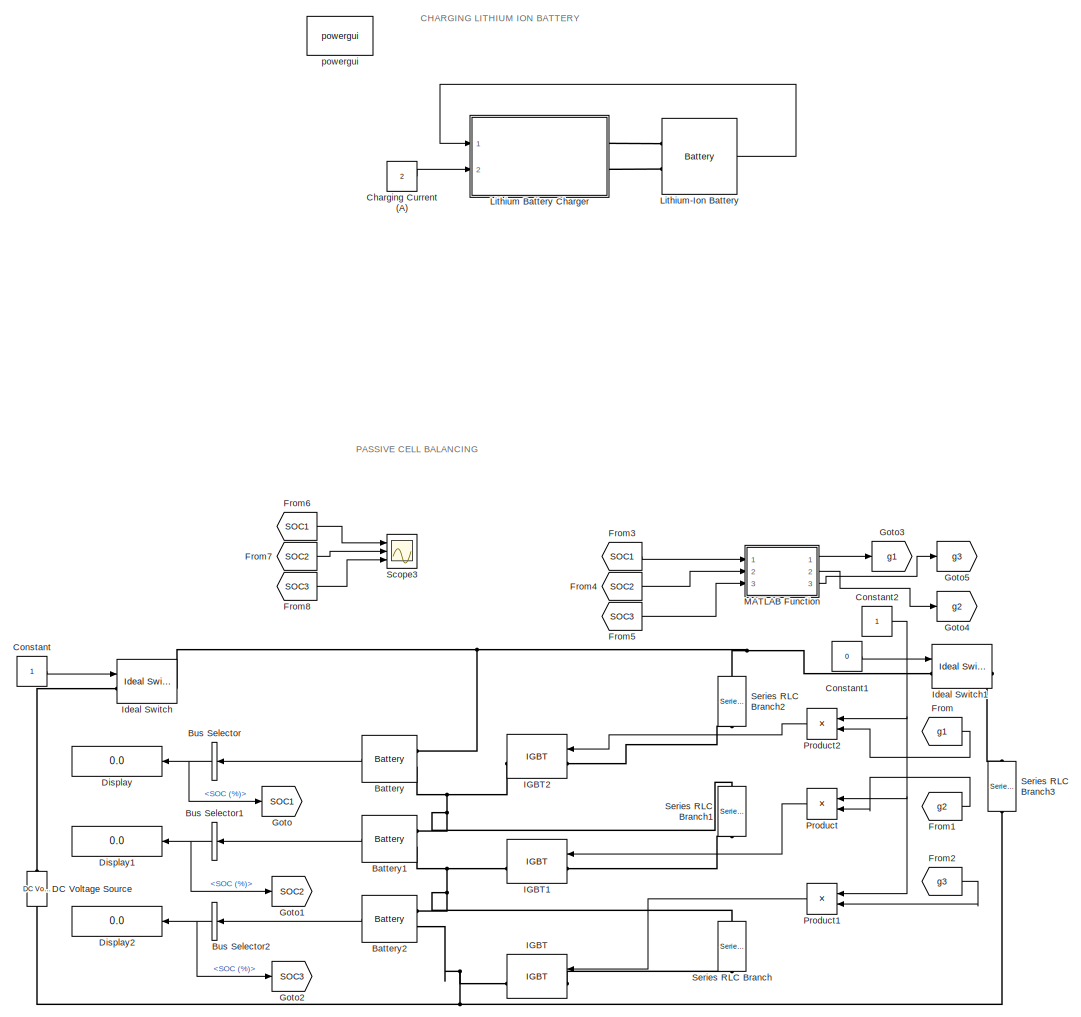
[diagram: root canvas - part 1/4, center side, full height]
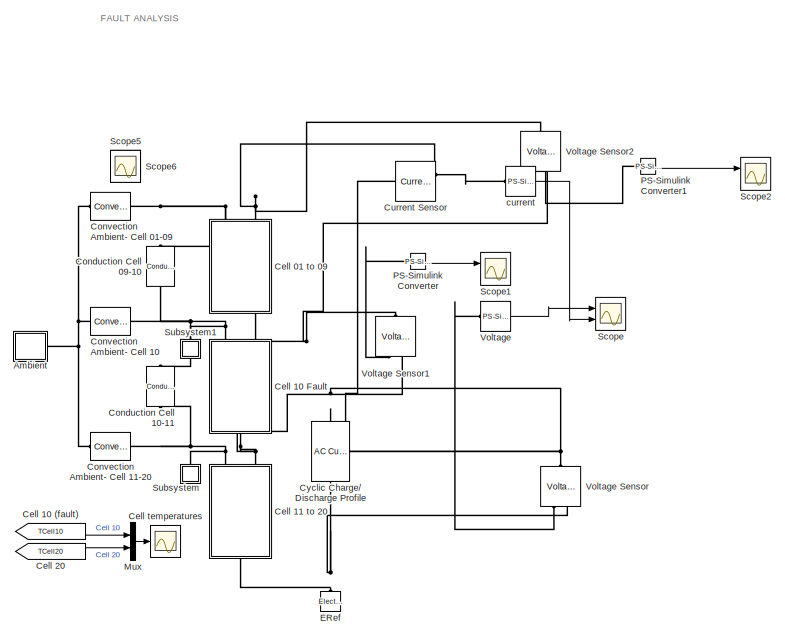
[diagram: root canvas - part 2/4, middle right region]
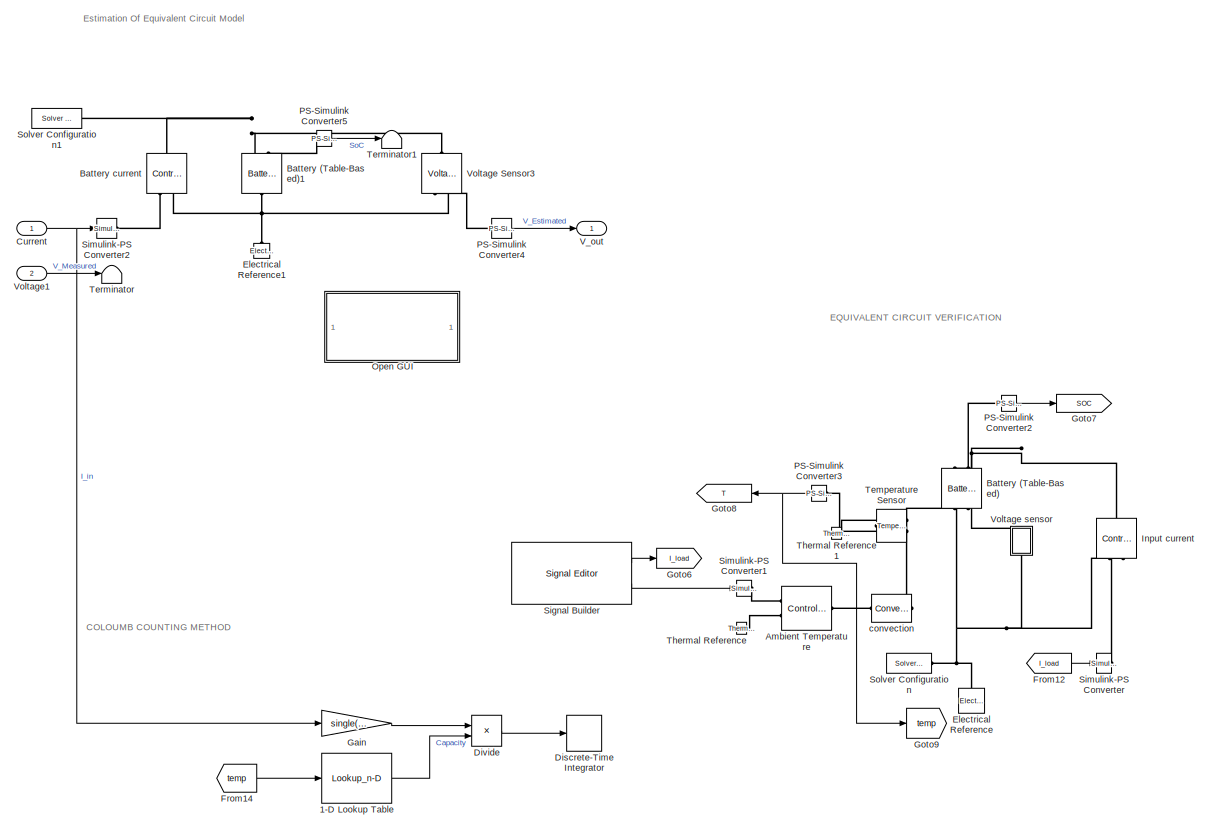
[diagram: root canvas - part 3/4, left side, full height]
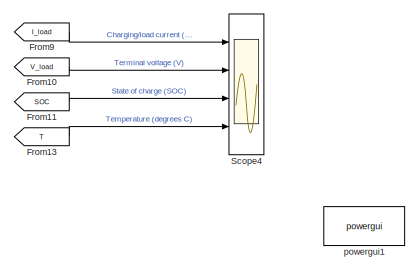
[diagram: root canvas - part 4/4, bottom center region]
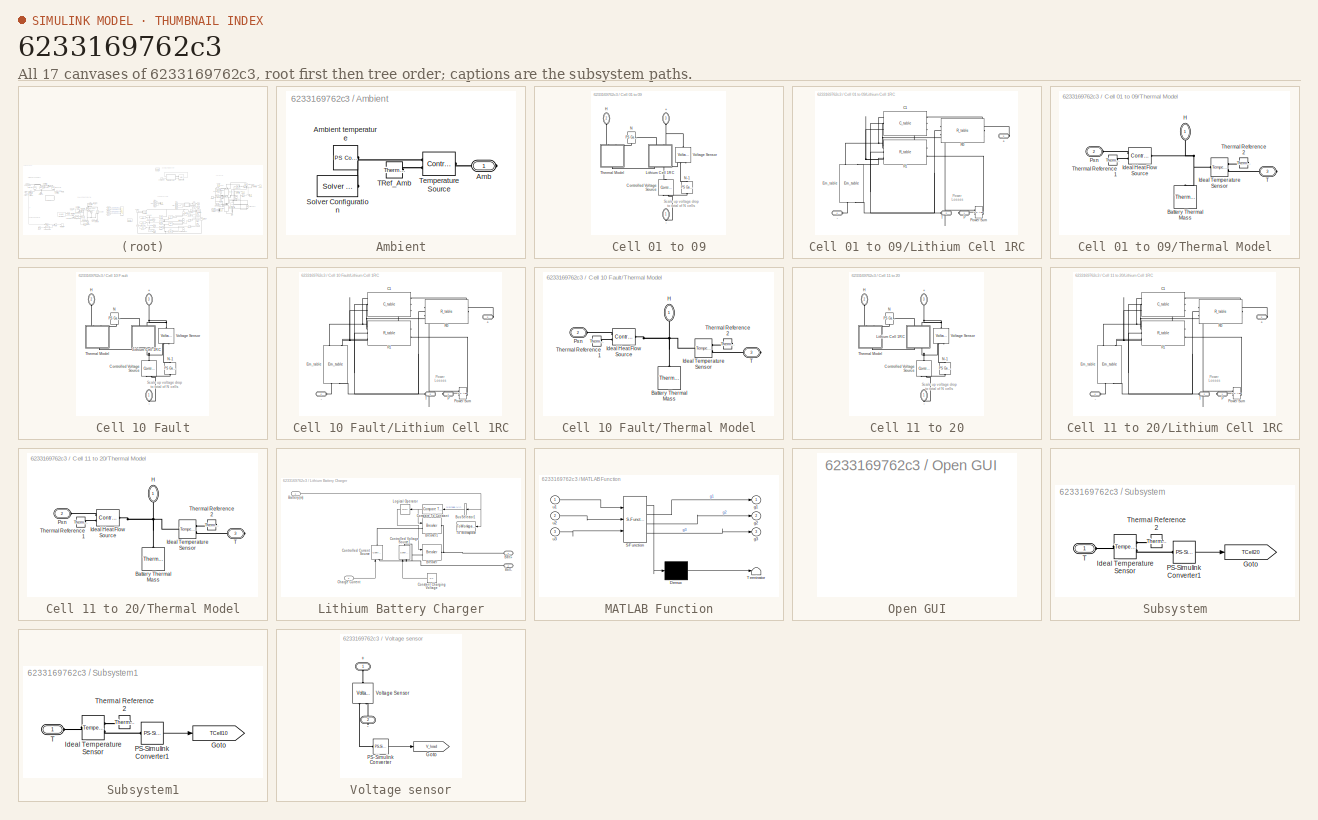
[diagram: thumbnail index - all 17 canvases of the model, root first then tree order]
MODEL slx_6233169762c3
KIND model
CONFIG AbsTol = auto
CONFIG EnableMultiTasking = on
CONFIG FixedStep = auto
CONFIG MaxStep = 10
CONFIG MinStep = auto
CONFIG PreLoadFcn = ssc_lithium_cell_1RC_ini
CONFIG RelTol = 1e-3
CONFIG SampleTimeConstraint = Unconstrained
CONFIG SolverName = VariableStepAuto
CONFIG StartTime = 0.0
CONFIG StopTime = 7200
BLOCK [Lookup_n-D] 1-D Lookup Table
  BreakpointsForDimension1 = single(Battery(1).Temperature_LUT)
  InputPortMap = u0
  InternalRulePriority = Speed
  NumberOfTableDimensions = 1
  Ports = [1, 1]
  RndMeth = Simplest
  Table = single(Battery(1).Capacity_LUT)
BLOCK [SubSystem] Ambient
  Ports = [0, 0, 0, 0, 0, 0, 1]
  RequestExecContextInheritance = off
BLOCK [Reference] Ambient Temperature  REF=fl_lib/Thermal/Thermal Sources/Controlled
Temperature Source
  Ports = [0, 0, 0, 0, 0, 1, 2]
  SourceBlock = fl_lib/Thermal/Thermal Sources/Controlled\nTemperature Source
  SourceProductBaseCode = SS
  SourceType = Controlled\nTemperature Source
BLOCK [PMIOPort] Ambient/Amb
  Side = Right
BLOCK [Reference] Ambient/Ambient temperature  REF=fl_lib/Physical Signals/Sources/PS Constant
  NameLocation = top
  Ports = [0, 0, 0, 0, 0, 0, 1]
  SourceBlock = fl_lib/Physical Signals/Sources/PS Constant
  SourceProductBaseCode = SS
  SourceType = PS Constant
BLOCK [Reference] Ambient/Solver Configuration  REF=nesl_utility/Solver
Configuration
  Ports = [0, 0, 0, 0, 0, 0, 1]
  SourceBlock = nesl_utility/Solver\nConfiguration
  SourceProductBaseCode = PW,SS
  SourceType = Solver\nConfiguration
BLOCK [Reference] Ambient/TRef_Amb  REF=fl_lib/Thermal/Thermal Elements/Thermal Reference
  Ports = [0, 0, 0, 0, 0, 1]
  SourceBlock = fl_lib/Thermal/Thermal Elements/Thermal Reference
  SourceProductBaseCode = SS
  SourceType = Thermal Reference
BLOCK [Reference] Ambient/Temperature Source  REF=fl_lib/Thermal/Thermal Sources/Controlled
Temperature Source
  Ports = [0, 0, 0, 0, 0, 1, 2]
  SourceBlock = fl_lib/Thermal/Thermal Sources/Controlled\nTemperature Source
  SourceProductBaseCode = SS
  SourceType = Controlled\nTemperature Source
BLOCK [Reference] Battery  REF=spsBatteryLib/Battery
  Ports = [0, 1, 0, 0, 0, 2]
  SourceBlock = spsBatteryLib/Battery
  SourceProductBaseCode = PS
  SourceType = Battery
BLOCK [Reference] Battery (Table-Based)  REF=ee_lib/Sources/Battery
(Table-Based)
  NameLocation = left
  Ports = [0, 0, 0, 0, 0, 2, 2]
  SourceBlock = ee_lib/Sources/Battery\n(Table-Based)
  SourceProductBaseCode = PS
  SourceType = Battery\n(Table-Based)
BLOCK [Reference] Battery (Table-Based)1  REF=ee_lib/Sources/Battery
(Table-Based)
  NameLocation = right
  Ports = [0, 0, 0, 0, 0, 2, 1]
  SourceBlock = ee_lib/Sources/Battery\n(Table-Based)
  SourceProductBaseCode = PS
  SourceType = Battery\n(Table-Based)
BLOCK [Reference] Battery current  REF=fl_lib/Electrical/Electrical Sources/Controlled Current
Source
  NameLocation = left
  Ports = [0, 0, 0, 0, 0, 1, 2]
  SourceBlock = fl_lib/Electrical/Electrical Sources/Controlled Current\nSource
  SourceProductBaseCode = SS
  SourceType = Controlled Current\nSource
BLOCK [Reference] Battery1  REF=spsBatteryLib/Battery
  Ports = [0, 1, 0, 0, 0, 2]
  SourceBlock = spsBatteryLib/Battery
  SourceProductBaseCode = PS
  SourceType = Battery
BLOCK [Reference] Battery2  REF=spsBatteryLib/Battery
  Ports = [0, 1, 0, 0, 0, 2]
  SourceBlock = spsBatteryLib/Battery
  SourceProductBaseCode = PS
  SourceType = Battery
BLOCK [BusSelector] Bus Selector
  NameLocation = top
  OutputSignals = SOC (%)
  Ports = [1, 1]
BLOCK [BusSelector] Bus Selector1
  NameLocation = top
  OutputSignals = SOC (%)
  Ports = [1, 1]
BLOCK [BusSelector] Bus Selector2
  NameLocation = top
  OutputSignals = SOC (%)
  Ports = [1, 1]
BLOCK [SubSystem] Cell 01 to 09
  NameLocation = right
  Ports = [0, 0, 0, 0, 0, 2, 1]
  RequestExecContextInheritance = off
  Tag = PublishSubsystem
BLOCK [PMIOPort] Cell 01 to 09/+
  NameLocation = left
  Port = 3
  Side = Left
  Tag = PMCPort
BLOCK [PMIOPort] Cell 01 to 09/-
  NameLocation = left
  Side = Right
  Tag = PMCPort
BLOCK [Reference] Cell 01 to 09/Controlled Voltage Source  REF=fl_lib/Electrical/Electrical Sources/Controlled Voltage
Source
  NameLocation = left
  Ports = [0, 0, 0, 0, 0, 1, 2]
  SourceBlock = fl_lib/Electrical/Electrical Sources/Controlled Voltage\nSource
  SourceProductBaseCode = SS
  SourceType = Controlled Voltage\nSource
BLOCK [PMIOPort] Cell 01 to 09/H
  NameLocation = left
  Port = 2
  Side = Left
  Tag = PMCPort
BLOCK [SubSystem] Cell 01 to 09/Lithium Cell 1RC
  NameLocation = left
  Ports = [0, 0, 0, 0, 0, 2, 2]
  RequestExecContextInheritance = off
  Tag = PublishSubsystem
BLOCK [PMIOPort] Cell 01 to 09/Lithium Cell 1RC/+
  Port = 3
  Side = Right
BLOCK [PMIOPort] Cell 01 to 09/Lithium Cell 1RC/-
  NameLocation = top
  Port = 4
  Side = Left
BLOCK [Reference] Cell 01 to 09/Lithium Cell 1RC/C1  REF=LiBatteryElements_lib/C_table
  NameLocation = top
  Ports = [0, 0, 0, 0, 0, 3, 1]
  SourceBlock = LiBatteryElements_lib/C_table
  SourceProductBaseCode = SS
  SourceType = C_table
BLOCK [Reference] Cell 01 to 09/Lithium Cell 1RC/Em_table  REF=LiBatteryElements_lib/Em_table
  NameLocation = right
  Ports = [0, 0, 0, 0, 0, 3, 2]
  SourceBlock = LiBatteryElements_lib/Em_table
  SourceProductBaseCode = SS
  SourceType = Em_table
BLOCK [PMIOPort] Cell 01 to 09/Lithium Cell 1RC/P
  Side = Right
BLOCK [Reference] Cell 01 to 09/Lithium Cell 1RC/Power Sum  REF=fl_ps_legacy_lib/Legacy Physical
Signals/Functions/PS Add
  NameLocation = top
  Ports = [0, 0, 0, 0, 0, 2, 1]
  SourceBlock = fl_ps_legacy_lib/Legacy Physical\nSignals/Functions/PS Add
  SourceProductBaseCode = SS
  SourceType = PS Add
BLOCK [Reference] Cell 01 to 09/Lithium Cell 1RC/R0  REF=LiBatteryElements_lib/R_table
  Ports = [0, 0, 0, 0, 0, 3, 2]
  SourceBlock = LiBatteryElements_lib/R_table
  SourceProductBaseCode = SS
  SourceType = R_table
BLOCK [Reference] Cell 01 to 09/Lithium Cell 1RC/R1  REF=LiBatteryElements_lib/R_table
  Ports = [0, 0, 0, 0, 0, 3, 2]
  SourceBlock = LiBatteryElements_lib/R_table
  SourceProductBaseCode = SS
  SourceType = R_table
BLOCK [PMIOPort] Cell 01 to 09/Lithium Cell 1RC/T
  Port = 2
  Side = Left
BLOCK [Reference] Cell 01 to 09/N  REF=fl_ps_legacy_lib/Legacy Physical
Signals/Functions/PS Gain
  NameLocation = top
  Ports = [0, 0, 0, 0, 0, 1, 1]
  SourceBlock = fl_ps_legacy_lib/Legacy Physical\nSignals/Functions/PS Gain
  SourceProductBaseCode = SS
  SourceType = PS Gain
BLOCK [Reference] Cell 01 to 09/N-1  REF=fl_ps_legacy_lib/Legacy Physical
Signals/Functions/PS Gain
  NameLocation = right
  Ports = [0, 0, 0, 0, 0, 1, 1]
  SourceBlock = fl_ps_legacy_lib/Legacy Physical\nSignals/Functions/PS Gain
  SourceProductBaseCode = SS
  SourceType = PS Gain
BLOCK [SubSystem] Cell 01 to 09/Thermal Model
  NameLocation = left
  Ports = [0, 0, 0, 0, 0, 2, 1]
  RequestExecContextInheritance = off
BLOCK [Reference] Cell 01 to 09/Thermal Model/Battery Thermal Mass  REF=fl_lib/Thermal/Thermal Elements/Thermal Mass
  NameLocation = right
  Ports = [0, 0, 0, 0, 0, 1]
  SourceBlock = fl_lib/Thermal/Thermal Elements/Thermal Mass
  SourceProductBaseCode = SS
  SourceType = Thermal Mass
BLOCK [PMIOPort] Cell 01 to 09/Thermal Model/H
  NameLocation = left
  Side = Left
  Tag = PMCPort
BLOCK [Reference] Cell 01 to 09/Thermal Model/Ideal Heat Flow Source  REF=fl_lib/Thermal/Thermal Sources/Controlled Heat Flow
Rate Source
  Ports = [0, 0, 0, 0, 0, 1, 2]
  SourceBlock = fl_lib/Thermal/Thermal Sources/Controlled Heat Flow\nRate Source
  SourceProductBaseCode = SS
  SourceType = Controlled Heat Flow\nRate Source
BLOCK [Reference] Cell 01 to 09/Thermal Model/Ideal Temperature Sensor  REF=fl_lib/Thermal/Thermal Sensors/Temperature Sensor
  Ports = [0, 0, 0, 0, 0, 1, 2]
  SourceBlock = fl_lib/Thermal/Thermal Sensors/Temperature Sensor
  SourceProductBaseCode = SS
  SourceType = Temperature Sensor
BLOCK [PMIOPort] Cell 01 to 09/Thermal Model/Pxn
  NameLocation = top
  Port = 2
  Side = Left
  Tag = PMCPort
BLOCK [PMIOPort] Cell 01 to 09/Thermal Model/T
  Port = 3
  Side = Right
  Tag = PMCPort
BLOCK [Reference] Cell 01 to 09/Thermal Model/Thermal Reference1  REF=fl_lib/Thermal/Thermal Elements/Thermal Reference
  Ports = [0, 0, 0, 0, 0, 1]
  SourceBlock = fl_lib/Thermal/Thermal Elements/Thermal Reference
  SourceProductBaseCode = SS
  SourceType = Thermal Reference
BLOCK [Reference] Cell 01 to 09/Thermal Model/Thermal Reference2  REF=fl_lib/Thermal/Thermal Elements/Thermal Reference
  NameLocation = top
  Ports = [0, 0, 0, 0, 0, 1]
  SourceBlock = fl_lib/Thermal/Thermal Elements/Thermal Reference
  SourceProductBaseCode = SS
  SourceType = Thermal Reference
BLOCK [Reference] Cell 01 to 09/Voltage Sensor  REF=fl_lib/Electrical/Electrical Sensors/Voltage Sensor
  NameLocation = right
  Ports = [0, 0, 0, 0, 0, 1, 2]
  SourceBlock = fl_lib/Electrical/Electrical Sensors/Voltage Sensor
  SourceProductBaseCode = SS
  SourceType = Voltage Sensor
BLOCK [From] Cell 10 (fault)
  GotoTag = TCell10
  NameLocation = top
  TagVisibility = global
BLOCK [SubSystem] Cell 10 Fault
  NameLocation = right
  Ports = [0, 0, 0, 0, 0, 2, 1]
  RequestExecContextInheritance = off
BLOCK [PMIOPort] Cell 10 Fault/+
  NameLocation = left
  Port = 3
  Side = Left
  Tag = PMCPort
BLOCK [PMIOPort] Cell 10 Fault/-
  NameLocation = left
  Side = Right
  Tag = PMCPort
BLOCK [Reference] Cell 10 Fault/Controlled Voltage Source  REF=fl_lib/Electrical/Electrical Sources/Controlled Voltage
Source
  NameLocation = left
  Ports = [0, 0, 0, 0, 0, 1, 2]
  SourceBlock = fl_lib/Electrical/Electrical Sources/Controlled Voltage\nSource
  SourceProductBaseCode = SS
  SourceType = Controlled Voltage\nSource
BLOCK [PMIOPort] Cell 10 Fault/H
  NameLocation = left
  Port = 2
  Side = Left
  Tag = PMCPort
BLOCK [SubSystem] Cell 10 Fault/Lithium Cell 1RC
  NameLocation = left
  Ports = [0, 0, 0, 0, 0, 2, 2]
  RequestExecContextInheritance = off
BLOCK [PMIOPort] Cell 10 Fault/Lithium Cell 1RC/+
  Port = 3
  Side = Right
BLOCK [PMIOPort] Cell 10 Fault/Lithium Cell 1RC/-
  NameLocation = top
  Port = 4
  Side = Left
BLOCK [Reference] Cell 10 Fault/Lithium Cell 1RC/C1  REF=LiBatteryElements_lib/C_table
  NameLocation = top
  Ports = [0, 0, 0, 0, 0, 3, 1]
  SourceBlock = LiBatteryElements_lib/C_table
  SourceProductBaseCode = SS
  SourceType = C_table
BLOCK [Reference] Cell 10 Fault/Lithium Cell 1RC/Em_table  REF=LiBatteryElements_lib/Em_table
  NameLocation = right
  Ports = [0, 0, 0, 0, 0, 3, 2]
  SourceBlock = LiBatteryElements_lib/Em_table
  SourceProductBaseCode = SS
  SourceType = Em_table
BLOCK [PMIOPort] Cell 10 Fault/Lithium Cell 1RC/P
  Side = Right
BLOCK [Reference] Cell 10 Fault/Lithium Cell 1RC/Power Sum  REF=fl_ps_legacy_lib/Legacy Physical
Signals/Functions/PS Add
  NameLocation = top
  Ports = [0, 0, 0, 0, 0, 2, 1]
  SourceBlock = fl_ps_legacy_lib/Legacy Physical\nSignals/Functions/PS Add
  SourceProductBaseCode = SS
  SourceType = PS Add
BLOCK [Reference] Cell 10 Fault/Lithium Cell 1RC/R0  REF=LiBatteryElements_lib/R_table
  Ports = [0, 0, 0, 0, 0, 3, 2]
  SourceBlock = LiBatteryElements_lib/R_table
  SourceProductBaseCode = SS
  SourceType = R_table
BLOCK [Reference] Cell 10 Fault/Lithium Cell 1RC/R1  REF=LiBatteryElements_lib/R_table
  Ports = [0, 0, 0, 0, 0, 3, 2]
  SourceBlock = LiBatteryElements_lib/R_table
  SourceProductBaseCode = SS
  SourceType = R_table
BLOCK [PMIOPort] Cell 10 Fault/Lithium Cell 1RC/T
  Port = 2
  Side = Left
BLOCK [Reference] Cell 10 Fault/N  REF=fl_ps_legacy_lib/Legacy Physical
Signals/Functions/PS Gain
  NameLocation = top
  Ports = [0, 0, 0, 0, 0, 1, 1]
  SourceBlock = fl_ps_legacy_lib/Legacy Physical\nSignals/Functions/PS Gain
  SourceProductBaseCode = SS
  SourceType = PS Gain
BLOCK [Reference] Cell 10 Fault/N-1  REF=fl_ps_legacy_lib/Legacy Physical
Signals/Functions/PS Gain
  NameLocation = right
  Ports = [0, 0, 0, 0, 0, 1, 1]
  SourceBlock = fl_ps_legacy_lib/Legacy Physical\nSignals/Functions/PS Gain
  SourceProductBaseCode = SS
  SourceType = PS Gain
BLOCK [SubSystem] Cell 10 Fault/Thermal Model
  NameLocation = left
  Ports = [0, 0, 0, 0, 0, 2, 1]
  RequestExecContextInheritance = off
BLOCK [Reference] Cell 10 Fault/Thermal Model/Battery Thermal Mass  REF=fl_lib/Thermal/Thermal Elements/Thermal Mass
  NameLocation = right
  Ports = [0, 0, 0, 0, 0, 1]
  SourceBlock = fl_lib/Thermal/Thermal Elements/Thermal Mass
  SourceProductBaseCode = SS
  SourceType = Thermal Mass
BLOCK [PMIOPort] Cell 10 Fault/Thermal Model/H
  NameLocation = left
  Side = Left
  Tag = PMCPort
BLOCK [Reference] Cell 10 Fault/Thermal Model/Ideal Heat Flow Source  REF=fl_lib/Thermal/Thermal Sources/Controlled Heat Flow
Rate Source
  Ports = [0, 0, 0, 0, 0, 1, 2]
  SourceBlock = fl_lib/Thermal/Thermal Sources/Controlled Heat Flow\nRate Source
  SourceProductBaseCode = SS
  SourceType = Controlled Heat Flow\nRate Source
BLOCK [Reference] Cell 10 Fault/Thermal Model/Ideal Temperature Sensor  REF=fl_lib/Thermal/Thermal Sensors/Temperature Sensor
  Ports = [0, 0, 0, 0, 0, 1, 2]
  SourceBlock = fl_lib/Thermal/Thermal Sensors/Temperature Sensor
  SourceProductBaseCode = SS
  SourceType = Temperature Sensor
BLOCK [PMIOPort] Cell 10 Fault/Thermal Model/Pxn
  NameLocation = top
  Port = 2
  Side = Left
  Tag = PMCPort
BLOCK [PMIOPort] Cell 10 Fault/Thermal Model/T
  Port = 3
  Side = Right
  Tag = PMCPort
BLOCK [Reference] Cell 10 Fault/Thermal Model/Thermal Reference1  REF=fl_lib/Thermal/Thermal Elements/Thermal Reference
  Ports = [0, 0, 0, 0, 0, 1]
  SourceBlock = fl_lib/Thermal/Thermal Elements/Thermal Reference
  SourceProductBaseCode = SS
  SourceType = Thermal Reference
BLOCK [Reference] Cell 10 Fault/Thermal Model/Thermal Reference2  REF=fl_lib/Thermal/Thermal Elements/Thermal Reference
  NameLocation = top
  Ports = [0, 0, 0, 0, 0, 1]
  SourceBlock = fl_lib/Thermal/Thermal Elements/Thermal Reference
  SourceProductBaseCode = SS
  SourceType = Thermal Reference
BLOCK [Reference] Cell 10 Fault/Voltage Sensor  REF=fl_lib/Electrical/Electrical Sensors/Voltage Sensor
  NameLocation = right
  Ports = [0, 0, 0, 0, 0, 1, 2]
  SourceBlock = fl_lib/Electrical/Electrical Sensors/Voltage Sensor
  SourceProductBaseCode = SS
  SourceType = Voltage Sensor
BLOCK [SubSystem] Cell 11 to 20
  NameLocation = right
  Ports = [0, 0, 0, 0, 0, 2, 1]
  RequestExecContextInheritance = off
BLOCK [PMIOPort] Cell 11 to 20/+
  NameLocation = left
  Port = 3
  Side = Left
  Tag = PMCPort
BLOCK [PMIOPort] Cell 11 to 20/-
  NameLocation = left
  Side = Right
  Tag = PMCPort
BLOCK [Reference] Cell 11 to 20/Controlled Voltage Source  REF=fl_lib/Electrical/Electrical Sources/Controlled Voltage
Source
  NameLocation = left
  Ports = [0, 0, 0, 0, 0, 1, 2]
  SourceBlock = fl_lib/Electrical/Electrical Sources/Controlled Voltage\nSource
  SourceProductBaseCode = SS
  SourceType = Controlled Voltage\nSource
BLOCK [PMIOPort] Cell 11 to 20/H
  NameLocation = left
  Port = 2
  Side = Left
  Tag = PMCPort
BLOCK [SubSystem] Cell 11 to 20/Lithium Cell 1RC
  NameLocation = left
  Ports = [0, 0, 0, 0, 0, 2, 2]
  RequestExecContextInheritance = off
BLOCK [PMIOPort] Cell 11 to 20/Lithium Cell 1RC/+
  Port = 3
  Side = Right
BLOCK [PMIOPort] Cell 11 to 20/Lithium Cell 1RC/-
  NameLocation = top
  Port = 4
  Side = Left
BLOCK [Reference] Cell 11 to 20/Lithium Cell 1RC/C1  REF=LiBatteryElements_lib/C_table
  NameLocation = top
  Ports = [0, 0, 0, 0, 0, 3, 1]
  SourceBlock = LiBatteryElements_lib/C_table
  SourceProductBaseCode = SS
  SourceType = C_table
BLOCK [Reference] Cell 11 to 20/Lithium Cell 1RC/Em_table  REF=LiBatteryElements_lib/Em_table
  NameLocation = right
  Ports = [0, 0, 0, 0, 0, 3, 2]
  SourceBlock = LiBatteryElements_lib/Em_table
  SourceProductBaseCode = SS
  SourceType = Em_table
BLOCK [PMIOPort] Cell 11 to 20/Lithium Cell 1RC/P
  Side = Right
BLOCK [Reference] Cell 11 to 20/Lithium Cell 1RC/Power Sum  REF=fl_ps_legacy_lib/Legacy Physical
Signals/Functions/PS Add
  NameLocation = top
  Ports = [0, 0, 0, 0, 0, 2, 1]
  SourceBlock = fl_ps_legacy_lib/Legacy Physical\nSignals/Functions/PS Add
  SourceProductBaseCode = SS
  SourceType = PS Add
BLOCK [Reference] Cell 11 to 20/Lithium Cell 1RC/R0  REF=LiBatteryElements_lib/R_table
  Ports = [0, 0, 0, 0, 0, 3, 2]
  SourceBlock = LiBatteryElements_lib/R_table
  SourceProductBaseCode = SS
  SourceType = R_table
BLOCK [Reference] Cell 11 to 20/Lithium Cell 1RC/R1  REF=LiBatteryElements_lib/R_table
  Ports = [0, 0, 0, 0, 0, 3, 2]
  SourceBlock = LiBatteryElements_lib/R_table
  SourceProductBaseCode = SS
  SourceType = R_table
BLOCK [PMIOPort] Cell 11 to 20/Lithium Cell 1RC/T
  Port = 2
  Side = Left
BLOCK [Reference] Cell 11 to 20/N  REF=fl_ps_legacy_lib/Legacy Physical
Signals/Functions/PS Gain
  NameLocation = top
  Ports = [0, 0, 0, 0, 0, 1, 1]
  SourceBlock = fl_ps_legacy_lib/Legacy Physical\nSignals/Functions/PS Gain
  SourceProductBaseCode = SS
  SourceType = PS Gain
BLOCK [Reference] Cell 11 to 20/N-1  REF=fl_ps_legacy_lib/Legacy Physical
Signals/Functions/PS Gain
  NameLocation = right
  Ports = [0, 0, 0, 0, 0, 1, 1]
  SourceBlock = fl_ps_legacy_lib/Legacy Physical\nSignals/Functions/PS Gain
  SourceProductBaseCode = SS
  SourceType = PS Gain
BLOCK [SubSystem] Cell 11 to 20/Thermal Model
  NameLocation = left
  Ports = [0, 0, 0, 0, 0, 2, 1]
  RequestExecContextInheritance = off
BLOCK [Reference] Cell 11 to 20/Thermal Model/Battery Thermal Mass  REF=fl_lib/Thermal/Thermal Elements/Thermal Mass
  NameLocation = right
  Ports = [0, 0, 0, 0, 0, 1]
  SourceBlock = fl_lib/Thermal/Thermal Elements/Thermal Mass
  SourceProductBaseCode = SS
  SourceType = Thermal Mass
BLOCK [PMIOPort] Cell 11 to 20/Thermal Model/H
  NameLocation = left
  Side = Left
  Tag = PMCPort
BLOCK [Reference] Cell 11 to 20/Thermal Model/Ideal Heat Flow Source  REF=fl_lib/Thermal/Thermal Sources/Controlled Heat Flow
Rate Source
  Ports = [0, 0, 0, 0, 0, 1, 2]
  SourceBlock = fl_lib/Thermal/Thermal Sources/Controlled Heat Flow\nRate Source
  SourceProductBaseCode = SS
  SourceType = Controlled Heat Flow\nRate Source
BLOCK [Reference] Cell 11 to 20/Thermal Model/Ideal Temperature Sensor  REF=fl_lib/Thermal/Thermal Sensors/Temperature Sensor
  Ports = [0, 0, 0, 0, 0, 1, 2]
  SourceBlock = fl_lib/Thermal/Thermal Sensors/Temperature Sensor
  SourceProductBaseCode = SS
  SourceType = Temperature Sensor
BLOCK [PMIOPort] Cell 11 to 20/Thermal Model/Pxn
  NameLocation = top
  Port = 2
  Side = Left
  Tag = PMCPort
BLOCK [PMIOPort] Cell 11 to 20/Thermal Model/T
  Port = 3
  Side = Right
  Tag = PMCPort
BLOCK [Reference] Cell 11 to 20/Thermal Model/Thermal Reference1  REF=fl_lib/Thermal/Thermal Elements/Thermal Reference
  Ports = [0, 0, 0, 0, 0, 1]
  SourceBlock = fl_lib/Thermal/Thermal Elements/Thermal Reference
  SourceProductBaseCode = SS
  SourceType = Thermal Reference
BLOCK [Reference] Cell 11 to 20/Thermal Model/Thermal Reference2  REF=fl_lib/Thermal/Thermal Elements/Thermal Reference
  NameLocation = top
  Ports = [0, 0, 0, 0, 0, 1]
  SourceBlock = fl_lib/Thermal/Thermal Elements/Thermal Reference
  SourceProductBaseCode = SS
  SourceType = Thermal Reference
BLOCK [Reference] Cell 11 to 20/Voltage Sensor  REF=fl_lib/Electrical/Electrical Sensors/Voltage Sensor
  NameLocation = right
  Ports = [0, 0, 0, 0, 0, 1, 2]
  SourceBlock = fl_lib/Electrical/Electrical Sensors/Voltage Sensor
  SourceProductBaseCode = SS
  SourceType = Voltage Sensor
BLOCK [From] Cell 20
  GotoTag = TCell20
  TagVisibility = global
BLOCK [Scope] Cell temperatures
  Floating = off
  NumInputPorts = 1
  Ports = [1]
  ScopeSpecificationString = Simulink.scopes.TimeScopeBlockCfg('CurrentConfiguration', extmgr.ConfigurationSet(extmgr.Configuration('Core','General UI',true,'FigureColor',[0.501960784313725 0.501960784313725 0.501960784313725]),extmgr.Configuration('Core','Source UI',true),extmgr.Configuration('Sources','WiredSimulink',true,'DataLoggingSaveFormat','Array','DataLoggingLimitDataPoints',true,'DataLoggingDecimation','1','DataLogg...<+2912ch>
BLOCK [Constant] Charging Current (A)
  Value = 2
BLOCK [Reference] Conduction Cell 09-10  REF=fl_lib/Thermal/Thermal Elements/Conductive Heat
Transfer
  NameLocation = left
  Ports = [0, 0, 0, 0, 0, 1, 1]
  SourceBlock = fl_lib/Thermal/Thermal Elements/Conductive Heat\nTransfer
  SourceProductBaseCode = SS
  SourceType = Conductive Heat\nTransfer
BLOCK [Reference] Conduction Cell 10-11   REF=fl_lib/Thermal/Thermal Elements/Conductive Heat
Transfer
  NameLocation = left
  Ports = [0, 0, 0, 0, 0, 1, 1]
  SourceBlock = fl_lib/Thermal/Thermal Elements/Conductive Heat\nTransfer
  SourceProductBaseCode = SS
  SourceType = Conductive Heat\nTransfer
BLOCK [Constant] Constant
BLOCK [Constant] Constant1
  Value = 0
BLOCK [Constant] Constant2
BLOCK [Reference] Convection Ambient- Cell 01-09  REF=fl_lib/Thermal/Thermal Elements/Convective Heat
Transfer
  NameLocation = top
  Ports = [0, 0, 0, 0, 0, 1, 1]
  SourceBlock = fl_lib/Thermal/Thermal Elements/Convective Heat\nTransfer
  SourceProductBaseCode = SS
  SourceType = Convective Heat\nTransfer
BLOCK [Reference] Convection Ambient- Cell 10  REF=fl_lib/Thermal/Thermal Elements/Convective Heat
Transfer
  Ports = [0, 0, 0, 0, 0, 1, 1]
  SourceBlock = fl_lib/Thermal/Thermal Elements/Convective Heat\nTransfer
  SourceProductBaseCode = SS
  SourceType = Convective Heat\nTransfer
BLOCK [Reference] Convection Ambient- Cell 11-20  REF=fl_lib/Thermal/Thermal Elements/Convective Heat
Transfer
  Ports = [0, 0, 0, 0, 0, 1, 1]
  SourceBlock = fl_lib/Thermal/Thermal Elements/Convective Heat\nTransfer
  SourceProductBaseCode = SS
  SourceType = Convective Heat\nTransfer
BLOCK [Inport] Current
BLOCK [Reference] Current Sensor  REF=fl_lib/Electrical/Electrical Sensors/Current Sensor
  Ports = [0, 0, 0, 0, 0, 1, 2]
  SourceBlock = fl_lib/Electrical/Electrical Sensors/Current Sensor
  SourceProductBaseCode = SS
  SourceType = Current Sensor
BLOCK [Reference] Cyclic Charge// Discharge Profile  REF=fl_lib/Electrical/Electrical Sources/AC Current Source
  NameLocation = right
  Ports = [0, 0, 0, 0, 0, 1, 1]
  SourceBlock = fl_lib/Electrical/Electrical Sources/AC Current Source
  SourceProductBaseCode = SS
  SourceType = AC Current Source
BLOCK [Reference] DC Voltage Source  REF=spsDCVoltageSourceLib/DC Voltage Source
  Ports = [0, 0, 0, 0, 0, 1, 1]
  SourceBlock = spsDCVoltageSourceLib/DC Voltage Source
  SourceProductBaseCode = PS
  SourceType = DC Voltage Source
BLOCK [DiscreteIntegrator] Discrete-Time Integrator
  ICPrevOutput = DiscIntNeverNeededParam
  ICPrevScaledInput = DiscIntNeverNeededParam
  InitialCondition = single(0+0.05)
  InitialConditionSetting = Auto
  LimitOutput = on
  LowerSaturationLimit = 0
  Ports = [1, 1]
  SampleTime = -1
  UpperSaturationLimit = 1
BLOCK [Display] Display
  Decimation = 1
  NameLocation = top
  Ports = [1]
BLOCK [Display] Display1
  Decimation = 1
  NameLocation = top
  Ports = [1]
BLOCK [Display] Display2
  Decimation = 1
  NameLocation = top
  Ports = [1]
BLOCK [Product] Divide
  Inputs = */
  NameLocation = top
  Ports = [2, 1]
BLOCK [Reference] ERef   REF=fl_lib/Electrical/Electrical Elements/Electrical Reference
  NameLocation = left
  Ports = [0, 0, 0, 0, 0, 1]
  SourceBlock = fl_lib/Electrical/Electrical Elements/Electrical Reference
  SourceProductBaseCode = SS
  SourceType = Electrical Reference
BLOCK [Reference] Electrical Reference  REF=fl_lib/Electrical/Electrical Elements/Electrical Reference
  NameLocation = right
  Ports = [0, 0, 0, 0, 0, 1]
  SourceBlock = fl_lib/Electrical/Electrical Elements/Electrical Reference
  SourceProductBaseCode = SS
  SourceType = Electrical Reference
BLOCK [Reference] Electrical Reference1  REF=fl_lib/Electrical/Electrical Elements/Electrical Reference
  NameLocation = right
  Ports = [0, 0, 0, 0, 0, 1]
  SourceBlock = fl_lib/Electrical/Electrical Elements/Electrical Reference
  SourceProductBaseCode = SS
  SourceType = Electrical Reference
BLOCK [From] From
  GotoTag = g1
BLOCK [From] From1
  GotoTag = g2
BLOCK [From] From10
  GotoTag = V_load
  TagVisibility = global
BLOCK [From] From11
  GotoTag = SOC
BLOCK [From] From12
  GotoTag = I_load
  TagVisibility = global
BLOCK [From] From13
  GotoTag = T
BLOCK [From] From14
  GotoTag = temp
  TagVisibility = global
BLOCK [From] From2
  GotoTag = g3
BLOCK [From] From3
  GotoTag = SOC1
BLOCK [From] From4
  GotoTag = SOC2
BLOCK [From] From5
  GotoTag = SOC3
BLOCK [From] From6
  GotoTag = SOC1
BLOCK [From] From7
  GotoTag = SOC2
BLOCK [From] From8
  GotoTag = SOC3
BLOCK [From] From9
  GotoTag = I_load
  TagVisibility = global
BLOCK [Gain] Gain
  Gain = single(1/3600)
BLOCK [Goto] Goto
  GotoTag = SOC1
BLOCK [Goto] Goto1
  GotoTag = SOC2
BLOCK [Goto] Goto2
  GotoTag = SOC3
BLOCK [Goto] Goto3
  GotoTag = g1
BLOCK [Goto] Goto4
  GotoTag = g2
BLOCK [Goto] Goto5
  GotoTag = g3
BLOCK [Goto] Goto6
  GotoTag = I_load
  NameLocation = top
  TagVisibility = global
BLOCK [Goto] Goto7
  GotoTag = SOC
  NameLocation = top
BLOCK [Goto] Goto8
  GotoTag = T
  NameLocation = top
BLOCK [Goto] Goto9
  GotoTag = temp
  TagVisibility = global
BLOCK [Reference] IGBT  REF=spsIGBTLib/IGBT
  Ports = [1, 1, 0, 0, 0, 1, 1]
  SourceBlock = spsIGBTLib/IGBT
  SourceProductBaseCode = PS
  SourceType = IGBT
BLOCK [Reference] IGBT1  REF=spsIGBTLib/IGBT
  Ports = [1, 1, 0, 0, 0, 1, 1]
  SourceBlock = spsIGBTLib/IGBT
  SourceProductBaseCode = PS
  SourceType = IGBT
BLOCK [Reference] IGBT2  REF=spsIGBTLib/IGBT
  Ports = [1, 1, 0, 0, 0, 1, 1]
  SourceBlock = spsIGBTLib/IGBT
  SourceProductBaseCode = PS
  SourceType = IGBT
BLOCK [Reference] Ideal Switch  REF=spsIdealSwitchLib/Ideal Switch
  Ports = [1, 1, 0, 0, 0, 1, 1]
  SourceBlock = spsIdealSwitchLib/Ideal Switch
  SourceProductBaseCode = PS
  SourceType = Ideal Switch
BLOCK [Reference] Ideal Switch1  REF=spsIdealSwitchLib/Ideal Switch
  Ports = [1, 1, 0, 0, 0, 1, 1]
  SourceBlock = spsIdealSwitchLib/Ideal Switch
  SourceProductBaseCode = PS
  SourceType = Ideal Switch
BLOCK [Reference] Input current  REF=fl_lib/Electrical/Electrical Sources/Controlled Current
Source
  NameLocation = right
  Ports = [0, 0, 0, 0, 0, 1, 2]
  SourceBlock = fl_lib/Electrical/Electrical Sources/Controlled Current\nSource
  SourceProductBaseCode = SS
  SourceType = Controlled Current\nSource
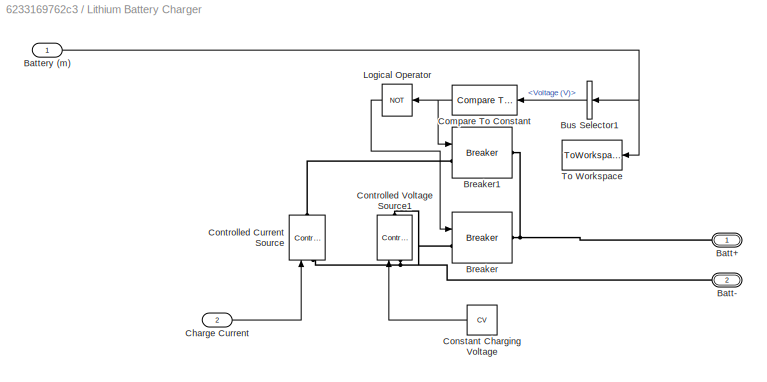
BLOCK [SubSystem] Lithium Battery Charger
  Ports = [2, 0, 0, 0, 0, 0, 2]
  RequestExecContextInheritance = off
BLOCK [PMIOPort] Lithium Battery Charger/Batt+
  Side = Right
BLOCK [PMIOPort] Lithium Battery Charger/Batt-
  Port = 2
  Side = Right
BLOCK [Inport] Lithium Battery Charger/Battery (m)
BLOCK [Reference] Lithium Battery Charger/Breaker  REF=spsBreakerLib/Breaker
  Ports = [1, 0, 0, 0, 0, 1, 1]
  SourceBlock = spsBreakerLib/Breaker
  SourceProductBaseCode = PS
  SourceType = Breaker
BLOCK [Reference] Lithium Battery Charger/Breaker1  REF=spsBreakerLib/Breaker
  Ports = [1, 0, 0, 0, 0, 1, 1]
  SourceBlock = spsBreakerLib/Breaker
  SourceProductBaseCode = PS
  SourceType = Breaker
BLOCK [BusSelector] Lithium Battery Charger/Bus Selector1
  OutputSignals = Voltage (V)
  Ports = [1, 1]
BLOCK [Inport] Lithium Battery Charger/Charge Current
  Port = 2
BLOCK [Reference] Lithium Battery Charger/Compare To Constant  REF=simulink/Logic and Bit
Operations/Compare
To Constant
  NameLocation = top
  Ports = [1, 1]
  SourceBlock = simulink/Logic and Bit\nOperations/Compare\nTo Constant
  SourceProductBaseCode = SL
  SourceType = Compare To Constant
BLOCK [Constant] Lithium Battery Charger/Constant Charging Voltage
  Value = CV
BLOCK [Reference] Lithium Battery Charger/Controlled Current Source  REF=spsControlledCurrentSourceLib/Controlled Current Source
  NameLocation = right
  Ports = [1, 0, 0, 0, 0, 1, 1]
  SourceBlock = spsControlledCurrentSourceLib/Controlled Current Source
  SourceProductBaseCode = PS
  SourceType = Controlled Current Source
BLOCK [Reference] Lithium Battery Charger/Controlled Voltage Source1  REF=spsControlledVoltageSourceLib/Controlled Voltage Source
  NameLocation = right
  Ports = [1, 0, 0, 0, 0, 1, 1]
  SourceBlock = spsControlledVoltageSourceLib/Controlled Voltage Source
  SourceProductBaseCode = PS
  SourceType = Controlled Voltage Source
BLOCK [Logic] Lithium Battery Charger/Logical Operator
  AllPortsSameDT = off
  Operator = NOT
  OutDataTypeStr = boolean
  Ports = [1, 1]
BLOCK [ToWorkspace] Lithium Battery Charger/To Workspace
  FixptAsFi = on
  MaxDataPoints = inf
  Ports = [1]
  SampleTime = -1
  VariableName = simout
BLOCK [Reference] Lithium-Ion Battery  REF=spsBatteryLib/Battery
  Ports = [0, 1, 0, 0, 0, 2]
  SourceBlock = spsBatteryLib/Battery
  SourceProductBaseCode = PS
  SourceType = Battery
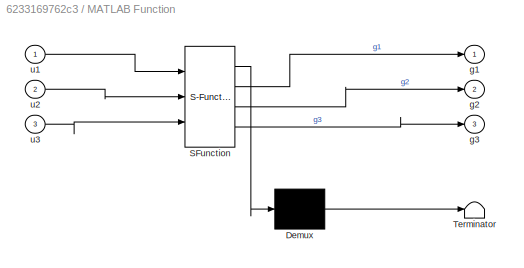
BLOCK [SubSystem] MATLAB Function
  ErrorFcn = Stateflow.Translate.translate
  PermitHierarchicalResolution = ExplicitOnly
  Ports = [3, 3]
  RequestExecContextInheritance = off
  SFBlockType = MATLAB Function
  TreatAsAtomicUnit = on
BLOCK [Demux] MATLAB Function/ Demux 
  Outputs = 1
  Ports = [1, 1]
BLOCK [S-Function] MATLAB Function/ SFunction 
  EnableBusSupport = on
  FunctionName = sf_sfun
  PortCounts = [3 4]
  Ports = [3, 4]
  SFcnIsStateOwnerBlock = off
  SFunctionDeploymentMode = off
  Tag = Stateflow S-Function 2
BLOCK [Terminator] MATLAB Function/ Terminator 
BLOCK [Outport] MATLAB Function/g1
  VectorParamsAs1DForOutWhenUnconnected = off
BLOCK [Outport] MATLAB Function/g2
  Port = 2
BLOCK [Outport] MATLAB Function/g3
  Port = 3
BLOCK [Inport] MATLAB Function/u1
BLOCK [Inport] MATLAB Function/u2
  Port = 2
BLOCK [Inport] MATLAB Function/u3
  Port = 3
BLOCK [Mux] Mux
  DisplayOption = bar
  Inputs = 2
  Ports = [2, 1]
BLOCK [SubSystem] Open GUI
  OpenFcn = % speload('ssc_lithium_cell_SDO_Project', 'Project - ssc_lithium_cell_1RC_estim', 'One Temp Estim');\nspetool('ssc_lithium_cell_1RC_estim_spesession')
  Ports = []
  RequestExecContextInheritance = off
BLOCK [Reference] PS-Simulink Converter  REF=nesl_utility/PS-Simulink
Converter
  Ports = [0, 1, 0, 0, 0, 1]
  SourceBlock = nesl_utility/PS-Simulink\nConverter
  SourceProductBaseCode = PW,SS
  SourceType = PS-Simulink\nConverter
BLOCK [Reference] PS-Simulink Converter1  REF=nesl_utility/PS-Simulink
Converter
  Ports = [0, 1, 0, 0, 0, 1]
  SourceBlock = nesl_utility/PS-Simulink\nConverter
  SourceProductBaseCode = PW,SS
  SourceType = PS-Simulink\nConverter
BLOCK [Reference] PS-Simulink Converter2  REF=nesl_utility/PS-Simulink
Converter
  Ports = [0, 1, 0, 0, 0, 1]
  SourceBlock = nesl_utility/PS-Simulink\nConverter
  SourceProductBaseCode = PW,SS
  SourceType = PS-Simulink\nConverter
BLOCK [Reference] PS-Simulink Converter3  REF=nesl_utility/PS-Simulink
Converter
  NameLocation = top
  Ports = [0, 1, 0, 0, 0, 1]
  SourceBlock = nesl_utility/PS-Simulink\nConverter
  SourceProductBaseCode = PW,SS
  SourceType = PS-Simulink\nConverter
BLOCK [Reference] PS-Simulink Converter4  REF=nesl_utility/PS-Simulink
Converter
  Ports = [0, 1, 0, 0, 0, 1]
  SourceBlock = nesl_utility/PS-Simulink\nConverter
  SourceProductBaseCode = PW,SS
  SourceType = PS-Simulink\nConverter
BLOCK [Reference] PS-Simulink Converter5  REF=nesl_utility/PS-Simulink
Converter
  Ports = [0, 1, 0, 0, 0, 1]
  SourceBlock = nesl_utility/PS-Simulink\nConverter
  SourceProductBaseCode = PW,SS
  SourceType = PS-Simulink\nConverter
BLOCK [Product] Product
  NameLocation = top
  Ports = [2, 1]
BLOCK [Product] Product1
  NameLocation = top
  Ports = [2, 1]
BLOCK [Product] Product2
  NameLocation = top
  Ports = [2, 1]
BLOCK [Scope] Scope
  Floating = off
  NumInputPorts = 2
  Ports = [2]
  ScopeSpecificationString = Simulink.scopes.TimeScopeBlockCfg('CurrentConfiguration', extmgr.ConfigurationSet(extmgr.Configuration('Core','General UI',true,'FigureColor',[1 1 1]),extmgr.Configuration('Core','Source UI',true),extmgr.Configuration('Sources','WiredSimulink',true,'DataLoggingVariableName','ScopeData2'),extmgr.Configuration('Visuals','Time Domain',true,'SerializedDisplays',{struct('MinYLimReal','66.66295','MaxYLi...<+2310ch>
BLOCK [Scope] Scope1
  Floating = off
  NumInputPorts = 2
  Ports = [2]
  ScopeSpecificationString = Simulink.scopes.TimeScopeBlockCfg('CurrentConfiguration', extmgr.ConfigurationSet(extmgr.Configuration('Core','General UI',true),extmgr.Configuration('Core','Source UI',true),extmgr.Configuration('Sources','WiredSimulink',true,'DataLoggingVariableName','ScopeData3'),extmgr.Configuration('Visuals','Time Domain',true,'SerializedDisplays',{struct('MinYLimReal','1.1229','MaxYLimReal','7.19757','YLabel...<+2209ch>
BLOCK [Scope] Scope2
  Floating = off
  NumInputPorts = 2
  Ports = [2]
  ScopeSpecificationString = Simulink.scopes.TimeScopeBlockCfg('CurrentConfiguration', extmgr.ConfigurationSet(extmgr.Configuration('Core','General UI',true,'FigureColor',[1 1 1]),extmgr.Configuration('Core','Source UI',true),extmgr.Configuration('Sources','WiredSimulink',true,'DataLoggingVariableName','ScopeData4'),extmgr.Configuration('Visuals','Time Domain',true,'SerializedDisplays',{struct('MinYLimReal','31.04024','MaxYLi...<+2265ch>
BLOCK [Scope] Scope3
  Floating = off
  NumInputPorts = 3
  Ports = [3]
  ScopeSpecificationString = Simulink.scopes.TimeScopeBlockCfg('CurrentConfiguration', extmgr.ConfigurationSet(extmgr.Configuration('Core','General UI',true,'FigureColor',[1 1 1]),extmgr.Configuration('Core','Source UI',true),extmgr.Configuration('Sources','WiredSimulink',true,'DataLoggingVariableName','ScopeData1'),extmgr.Configuration('Visuals','Time Domain',true,'SerializedDisplays',{struct('MinYLimReal','21.5762','MaxYLim...<+1493ch>
BLOCK [Scope] Scope4
  Floating = off
  NumInputPorts = 4
  Ports = [4]
  ScopeSpecificationString = Simulink.scopes.TimeScopeBlockCfg('CurrentConfiguration', extmgr.ConfigurationSet(extmgr.Configuration('Core','General UI',true,'FigureColor',[1 1 1]),extmgr.Configuration('Core','Source UI',true),extmgr.Configuration('Sources','WiredSimulink',true,'DataLoggingSaveFormat','StructureWithTime','DataLoggingDecimation','1','DataLoggingDecimateData',true,'DataLoggingVariableName','ScopeData2'),extmgr.C...<+4405ch>
BLOCK [Scope] Scope5
  Floating = off
  IOType = viewer
  NumInputPorts = 1
  Ports = []
  ScopeSpecificationString = Simulink.scopes.TimeScopeBlockCfg('CurrentConfiguration', extmgr.ConfigurationSet(extmgr.Configuration('Core','General UI',true),extmgr.Configuration('Core','Source UI',true),extmgr.Configuration('Sources','WiredSimulink',true,'DataLoggingVariableName','ScopeData2'),extmgr.Configuration('Visuals','Time Domain',true,'SerializedDisplays',{struct('MinYLimReal','-35.00000','MaxYLimReal','115.00000','Y...<+1640ch>
BLOCK [Scope] Scope6
  Floating = off
  IOType = viewer
  NumInputPorts = 1
  Ports = []
  ScopeSpecificationString = Simulink.scopes.TimeScopeBlockCfg('CurrentConfiguration', extmgr.ConfigurationSet(extmgr.Configuration('Core','General UI',true),extmgr.Configuration('Core','Source UI',true),extmgr.Configuration('Sources','WiredSimulink',true,'DataLoggingVariableName','ScopeData3'),extmgr.Configuration('Visuals','Time Domain',true,'SerializedDisplays',{struct('MinYLimReal','-15.875','MaxYLimReal','112.875','YLabe...<+1506ch>
BLOCK [Reference] Series RLC Branch  REF=spsSeriesRLCBranchLib/Series RLC Branch
  NameLocation = left
  Ports = [0, 0, 0, 0, 0, 1, 1]
  SourceBlock = spsSeriesRLCBranchLib/Series RLC Branch
  SourceProductBaseCode = PS
  SourceType = Series RLC Branch
BLOCK [Reference] Series RLC Branch1  REF=spsSeriesRLCBranchLib/Series RLC Branch
  NameLocation = left
  Ports = [0, 0, 0, 0, 0, 1, 1]
  SourceBlock = spsSeriesRLCBranchLib/Series RLC Branch
  SourceProductBaseCode = PS
  SourceType = Series RLC Branch
BLOCK [Reference] Series RLC Branch2  REF=spsSeriesRLCBranchLib/Series RLC Branch
  NameLocation = left
  Ports = [0, 0, 0, 0, 0, 1, 1]
  SourceBlock = spsSeriesRLCBranchLib/Series RLC Branch
  SourceProductBaseCode = PS
  SourceType = Series RLC Branch
BLOCK [Reference] Series RLC Branch3  REF=spsSeriesRLCBranchLib/Series RLC Branch
  NameLocation = left
  Ports = [0, 0, 0, 0, 0, 1, 1]
  SourceBlock = spsSeriesRLCBranchLib/Series RLC Branch
  SourceProductBaseCode = PS
  SourceType = Series RLC Branch
BLOCK [Reference] Signal Builder  REF=SignalEditorBlockLib/Signal Editor
  Ports = [0, 2]
  SourceBlock = SignalEditorBlockLib/Signal Editor
  SourceProductBaseCode = SL
  SourceType = SignalEditor
  UserDataPersistent = on
BLOCK [Reference] Simulink-PS Converter  REF=nesl_utility/Simulink-PS
Converter
  Ports = [1, 0, 0, 0, 0, 0, 1]
  SourceBlock = nesl_utility/Simulink-PS\nConverter
  SourceProductBaseCode = PW,SS
  SourceType = Simulink-PS\nConverter
BLOCK [Reference] Simulink-PS Converter1  REF=nesl_utility/Simulink-PS
Converter
  Ports = [1, 0, 0, 0, 0, 0, 1]
  SourceBlock = nesl_utility/Simulink-PS\nConverter
  SourceProductBaseCode = PW,SS
  SourceType = Simulink-PS\nConverter
BLOCK [Reference] Simulink-PS Converter2  REF=nesl_utility/Simulink-PS
Converter
  Ports = [1, 0, 0, 0, 0, 0, 1]
  SourceBlock = nesl_utility/Simulink-PS\nConverter
  SourceProductBaseCode = PW,SS
  SourceType = Simulink-PS\nConverter
BLOCK [Reference] Solver Configuration  REF=nesl_utility/Solver
Configuration
  Ports = [0, 0, 0, 0, 0, 0, 1]
  SourceBlock = nesl_utility/Solver\nConfiguration
  SourceProductBaseCode = PW,SS
  SourceType = Solver\nConfiguration
BLOCK [Reference] Solver Configuration1  REF=nesl_utility/Solver
Configuration
  Ports = [0, 0, 0, 0, 0, 0, 1]
  SourceBlock = nesl_utility/Solver\nConfiguration
  SourceProductBaseCode = PW,SS
  SourceType = Solver\nConfiguration
BLOCK [SubSystem] Subsystem
  NameLocation = left
  Ports = [0, 0, 0, 0, 0, 1]
  RequestExecContextInheritance = off
BLOCK [Goto] Subsystem/Goto
  GotoTag = TCell20
  TagVisibility = global
BLOCK [Reference] Subsystem/Ideal Temperature Sensor  REF=fl_lib/Thermal/Thermal Sensors/Temperature Sensor
  Ports = [0, 0, 0, 0, 0, 1, 2]
  SourceBlock = fl_lib/Thermal/Thermal Sensors/Temperature Sensor
  SourceProductBaseCode = SS
  SourceType = Temperature Sensor
BLOCK [Reference] Subsystem/PS-Simulink Converter1  REF=nesl_utility/PS-Simulink
Converter
  Ports = [0, 1, 0, 0, 0, 1]
  SourceBlock = nesl_utility/PS-Simulink\nConverter
  SourceProductBaseCode = PW,SS
  SourceType = PS-Simulink\nConverter
BLOCK [PMIOPort] Subsystem/T
  Side = Left
BLOCK [Reference] Subsystem/Thermal Reference2  REF=fl_lib/Thermal/Thermal Elements/Thermal Reference
  NameLocation = top
  Ports = [0, 0, 0, 0, 0, 1]
  SourceBlock = fl_lib/Thermal/Thermal Elements/Thermal Reference
  SourceProductBaseCode = SS
  SourceType = Thermal Reference
BLOCK [SubSystem] Subsystem1
  NameLocation = left
  Ports = [0, 0, 0, 0, 0, 1]
  RequestExecContextInheritance = off
BLOCK [Goto] Subsystem1/Goto
  GotoTag = TCell10
  TagVisibility = global
BLOCK [Reference] Subsystem1/Ideal Temperature Sensor  REF=fl_lib/Thermal/Thermal Sensors/Temperature Sensor
  Ports = [0, 0, 0, 0, 0, 1, 2]
  SourceBlock = fl_lib/Thermal/Thermal Sensors/Temperature Sensor
  SourceProductBaseCode = SS
  SourceType = Temperature Sensor
BLOCK [Reference] Subsystem1/PS-Simulink Converter1  REF=nesl_utility/PS-Simulink
Converter
  Ports = [0, 1, 0, 0, 0, 1]
  SourceBlock = nesl_utility/PS-Simulink\nConverter
  SourceProductBaseCode = PW,SS
  SourceType = PS-Simulink\nConverter
BLOCK [PMIOPort] Subsystem1/T
  Side = Left
BLOCK [Reference] Subsystem1/Thermal Reference2  REF=fl_lib/Thermal/Thermal Elements/Thermal Reference
  NameLocation = top
  Ports = [0, 0, 0, 0, 0, 1]
  SourceBlock = fl_lib/Thermal/Thermal Elements/Thermal Reference
  SourceProductBaseCode = SS
  SourceType = Thermal Reference
BLOCK [Reference] Temperature Sensor  REF=fl_lib/Thermal/Thermal Sensors/Temperature Sensor
  NameLocation = top
  Ports = [0, 0, 0, 0, 0, 1, 2]
  SourceBlock = fl_lib/Thermal/Thermal Sensors/Temperature Sensor
  SourceProductBaseCode = SS
  SourceType = Temperature Sensor
BLOCK [Terminator] Terminator
BLOCK [Terminator] Terminator1
BLOCK [Reference] Thermal Reference  REF=fl_lib/Thermal/Thermal Elements/Thermal Reference
  Ports = [0, 0, 0, 0, 0, 1]
  SourceBlock = fl_lib/Thermal/Thermal Elements/Thermal Reference
  SourceProductBaseCode = SS
  SourceType = Thermal Reference
BLOCK [Reference] Thermal Reference1  REF=fl_lib/Thermal/Thermal Elements/Thermal Reference
  Ports = [0, 0, 0, 0, 0, 1]
  SourceBlock = fl_lib/Thermal/Thermal Elements/Thermal Reference
  SourceProductBaseCode = SS
  SourceType = Thermal Reference
BLOCK [Outport] V_out
  VectorParamsAs1DForOutWhenUnconnected = off
BLOCK [Reference] Voltage  REF=nesl_utility/PS-Simulink
Converter
  Ports = [0, 1, 0, 0, 0, 1]
  SourceBlock = nesl_utility/PS-Simulink\nConverter
  SourceProductBaseCode = PW,SS
  SourceType = PS-Simulink\nConverter
BLOCK [Reference] Voltage Sensor  REF=fl_lib/Electrical/Electrical Sensors/Voltage Sensor
  NameLocation = right
  Ports = [0, 0, 0, 0, 0, 1, 2]
  SourceBlock = fl_lib/Electrical/Electrical Sensors/Voltage Sensor
  SourceProductBaseCode = SS
  SourceType = Voltage Sensor
BLOCK [Reference] Voltage Sensor1  REF=fl_lib/Electrical/Electrical Sensors/Voltage Sensor
  NameLocation = right
  Ports = [0, 0, 0, 0, 0, 1, 2]
  SourceBlock = fl_lib/Electrical/Electrical Sensors/Voltage Sensor
  SourceProductBaseCode = SS
  SourceType = Voltage Sensor
BLOCK [Reference] Voltage Sensor2  REF=fl_lib/Electrical/Electrical Sensors/Voltage Sensor
  NameLocation = right
  Ports = [0, 0, 0, 0, 0, 1, 2]
  SourceBlock = fl_lib/Electrical/Electrical Sensors/Voltage Sensor
  SourceProductBaseCode = SS
  SourceType = Voltage Sensor
BLOCK [Reference] Voltage Sensor3  REF=fl_lib/Electrical/Electrical Sensors/Voltage Sensor
  NameLocation = right
  Ports = [0, 0, 0, 0, 0, 1, 2]
  SourceBlock = fl_lib/Electrical/Electrical Sensors/Voltage Sensor
  SourceProductBaseCode = SS
  SourceType = Voltage Sensor
BLOCK [SubSystem] Voltage sensor
  NameLocation = right
  Ports = [0, 0, 0, 0, 0, 1, 1]
  RequestExecContextInheritance = off
BLOCK [PMIOPort] Voltage sensor/+
  NameLocation = right
  Side = Left
BLOCK [PMIOPort] Voltage sensor/-
  NameLocation = right
  Port = 2
  Side = Right
BLOCK [Goto] Voltage sensor/Goto
  GotoTag = V_load
  TagVisibility = global
BLOCK [Reference] Voltage sensor/PS-Simulink Converter  REF=nesl_utility/PS-Simulink
Converter
  Ports = [0, 1, 0, 0, 0, 1]
  SourceBlock = nesl_utility/PS-Simulink\nConverter
  SourceProductBaseCode = PW,SS
  SourceType = PS-Simulink\nConverter
BLOCK [Reference] Voltage sensor/Voltage Sensor  REF=fl_lib/Electrical/Electrical Sensors/Voltage Sensor
  NameLocation = right
  Ports = [0, 0, 0, 0, 0, 1, 2]
  SourceBlock = fl_lib/Electrical/Electrical Sensors/Voltage Sensor
  SourceProductBaseCode = SS
  SourceType = Voltage Sensor
BLOCK [Inport] Voltage1
  Port = 2
BLOCK [Reference] convection  REF=fl_lib/Thermal/Thermal Elements/Convective Heat
Transfer
  Ports = [0, 0, 0, 0, 0, 1, 1]
  SourceBlock = fl_lib/Thermal/Thermal Elements/Convective Heat\nTransfer
  SourceProductBaseCode = SS
  SourceType = Convective Heat\nTransfer
BLOCK [Reference] current   REF=nesl_utility/PS-Simulink
Converter
  Ports = [0, 1, 0, 0, 0, 1]
  SourceBlock = nesl_utility/PS-Simulink\nConverter
  SourceProductBaseCode = PW,SS
  SourceType = PS-Simulink\nConverter
BLOCK [Reference] powergui  REF=spspowerguiLib/powergui
  Ports = []
  Priority = 1
  SourceBlock = spspowerguiLib/powergui
  SourceProductBaseCode = PS
  SourceType = PSB option menu block
BLOCK [Reference] powergui1  REF=spspowerguiLib/powergui
  Ports = []
  Priority = 1
  SourceBlock = spspowerguiLib/powergui
  SourceProductBaseCode = PS
  SourceType = PSB option menu block
ANNOTATION (root): CHARGING LITHIUM ION BATTERY
ANNOTATION (root): EQUIVALENT CIRCUIT VERIFICATION
ANNOTATION (root): Estimation Of Equivalent Circuit Model
ANNOTATION (root): PASSIVE CELL BALANCING
ANNOTATION (root): COLOUMB COUNTING METHOD
ANNOTATION (root): FAULT ANALYSIS
ANNOTATION Cell 01 to 09: Scale up voltage drop to total of N cells
ANNOTATION Cell 01 to 09/Lithium Cell 1RC: Power Losses
ANNOTATION Cell 10 Fault: Scale up voltage drop to total of N cells
ANNOTATION Cell 10 Fault/Lithium Cell 1RC: Power Losses
ANNOTATION Cell 11 to 20: Scale up voltage drop to total of N cells
ANNOTATION Cell 11 to 20/Lithium Cell 1RC: Power Losses
LINE 1-D Lookup Table:1 -> Divide:2
LINE Battery1:1 -> Bus Selector1:1
LINE Battery2:1 -> Bus Selector2:1
LINE Battery:1 -> Bus Selector:1
NET Bus Selector1:1 -> Display1:1, Goto1:1
NET Bus Selector2:1 -> Display2:1, Goto2:1
NET Bus Selector:1 -> Display:1, Goto:1
LINE Cell 10 (fault):1 -> Mux:1
LINE Cell 20:1 -> Mux:2
LINE Charging Current (A):1 -> Lithium Battery Charger:2
LINE Constant1:1 -> Ideal Switch1:1
NET Constant2:1 -> Product1:1, Product2:1, Product:1
LINE Constant:1 -> Ideal Switch:1
NET Current:1 -> Gain:1, Simulink-PS Converter2:1
LINE Divide:1 -> Discrete-Time Integrator:1
LINE From10:1 -> Scope4:2
LINE From11:1 -> Scope4:3
LINE From12:1 -> Simulink-PS Converter:1
LINE From13:1 -> Scope4:4
LINE From14:1 -> 1-D Lookup Table:1
LINE From1:1 -> Product:2
LINE From2:1 -> Product1:2
LINE From3:1 -> MATLAB Function:1
LINE From4:1 -> MATLAB Function:2
LINE From5:1 -> MATLAB Function:3
LINE From6:1 -> Scope3:1
LINE From7:1 -> Scope3:2
LINE From8:1 -> Scope3:3
LINE From9:1 -> Scope4:1
LINE From:1 -> Product2:2
LINE Gain:1 -> Divide:1
NET Lithium Battery Charger/Battery (m):1 -> Lithium Battery Charger/Bus Selector1:1, Lithium Battery Charger/To Workspace:1
LINE Lithium Battery Charger/Bus Selector1:1 -> Lithium Battery Charger/Compare To Constant:1
LINE Lithium Battery Charger/Charge Current:1 -> Lithium Battery Charger/Controlled Current Source:1
NET Lithium Battery Charger/Compare To Constant:1 -> Lithium Battery Charger/Breaker1:1, Lithium Battery Charger/Logical Operator:1
LINE Lithium Battery Charger/Constant Charging Voltage:1 -> Lithium Battery Charger/Controlled Voltage Source1:1
LINE Lithium Battery Charger/Logical Operator:1 -> Lithium Battery Charger/Breaker:1
LINE Lithium-Ion Battery:1 -> Lithium Battery Charger:1
LINE MATLAB Function:1 -> Goto3:1
LINE MATLAB Function:2 -> Goto4:1
LINE MATLAB Function:3 -> Goto5:1
LINE Mux:1 -> Cell temperatures:1
LINE PS-Simulink Converter1:1 -> Scope2:1
LINE PS-Simulink Converter2:1 -> Goto7:1
NET PS-Simulink Converter3:1 -> Goto8:1, Goto9:1
LINE PS-Simulink Converter4:1 -> V_out:1
LINE PS-Simulink Converter5:1 -> Terminator1:1
LINE PS-Simulink Converter:1 -> Scope1:1
LINE Product1:1 -> IGBT:1
LINE Product2:1 -> IGBT2:1
LINE Product:1 -> IGBT1:1
LINE Signal Builder:1 -> Goto6:1
LINE Signal Builder:2 -> Simulink-PS Converter1:1
LINE Subsystem/PS-Simulink Converter1:1 -> Subsystem/Goto:1
LINE Subsystem1/PS-Simulink Converter1:1 -> Subsystem1/Goto:1
LINE Voltage sensor/PS-Simulink Converter:1 -> Voltage sensor/Goto:1
LINE Voltage1:1 -> Terminator:1
LINE Voltage:1 -> Scope:1
LINE current :1 -> Scope:2
PLINE Ambient Temperature:LConn1 -- convection:LConn1
PLINE Ambient Temperature:RConn1 -- Simulink-PS Converter1:RConn1
PLINE Ambient Temperature:RConn2 -- Thermal Reference:LConn1
PLINE Ambient/Amb:RConn1 -- Ambient/Temperature Source:LConn1
PNET net1: Ambient/Ambient temperature:RConn1 -- Ambient/Solver Configuration:RConn1 -- Ambient/Temperature Source:RConn1
PLINE Ambient/TRef_Amb:LConn1 -- Ambient/Temperature Source:RConn2
PNET net2: Ambient:RConn1 -- Convection Ambient- Cell 01-09:LConn1 -- Convection Ambient- Cell 10:LConn1 -- Convection Ambient- Cell 11-20:LConn1
PNET net3: Battery (Table-Based)1:LConn1 -- Battery current:LConn1 -- Solver Configuration1:RConn1 -- Voltage Sensor3:LConn1
PLINE Battery (Table-Based)1:LConn2 -- PS-Simulink Converter5:LConn1
PNET net4: Battery (Table-Based)1:RConn1 -- Battery current:RConn2 -- Electrical Reference1:LConn1 -- Voltage Sensor3:RConn2
PNET net5: Battery (Table-Based):LConn1 -- Input current:LConn1 -- Voltage sensor:LConn1
PLINE Battery (Table-Based):LConn2 -- PS-Simulink Converter2:LConn1
PNET net6: Battery (Table-Based):RConn1 -- Electrical Reference:LConn1 -- Input current:RConn2 -- Solver Configuration:RConn1 -- Voltage sensor:RConn1
PNET net7: Battery (Table-Based):RConn2 -- Temperature Sensor:LConn1 -- convection:RConn1
PLINE Battery current:RConn1 -- Simulink-PS Converter2:RConn1
PNET net8: Battery1:LConn1 -- Battery:LConn2 -- IGBT2:RConn1 -- Series RLC Branch1:LConn1
PNET net9: Battery1:LConn2 -- Battery2:LConn1 -- IGBT1:RConn1 -- Series RLC Branch:LConn1
PNET net10: Battery2:LConn2 -- DC Voltage Source:LConn1 -- IGBT:RConn1 -- Series RLC Branch3:RConn1
PNET net11: Battery:LConn1 -- Ideal Switch1:LConn1 -- Ideal Switch:RConn1 -- Series RLC Branch2:LConn1
PNET net12: Cell 01 to 09/+:RConn1 -- Cell 01 to 09/Lithium Cell 1RC:RConn2 -- Cell 01 to 09/Voltage Sensor:LConn1
PLINE Cell 01 to 09/-:RConn1 -- Cell 01 to 09/Controlled Voltage Source:RConn2
PNET net13: Cell 01 to 09/Controlled Voltage Source:LConn1 -- Cell 01 to 09/Lithium Cell 1RC:LConn2 -- Cell 01 to 09/Voltage Sensor:RConn2
PLINE Cell 01 to 09/Controlled Voltage Source:RConn1 -- Cell 01 to 09/N-1:RConn1
PLINE Cell 01 to 09/H:RConn1 -- Cell 01 to 09/Thermal Model:LConn1
PLINE Cell 01 to 09/Lithium Cell 1RC/+:RConn1 -- Cell 01 to 09/Lithium Cell 1RC/R0:RConn1
PLINE Cell 01 to 09/Lithium Cell 1RC/-:RConn1 -- Cell 01 to 09/Lithium Cell 1RC/Em_table:RConn1
PNET net14: Cell 01 to 09/Lithium Cell 1RC/C1:LConn1 -- Cell 01 to 09/Lithium Cell 1RC/Em_table:LConn1 -- Cell 01 to 09/Lithium Cell 1RC/R1:LConn1
PNET net15: Cell 01 to 09/Lithium Cell 1RC/C1:LConn2 -- Cell 01 to 09/Lithium Cell 1RC/Em_table:RConn2 -- Cell 01 to 09/Lithium Cell 1RC/R0:LConn2 -- Cell 01 to 09/Lithium Cell 1RC/R1:LConn2 -- Cell 01 to 09/Lithium Cell 1RC/T:RConn1
PNET net16: Cell 01 to 09/Lithium Cell 1RC/C1:LConn3 -- Cell 01 to 09/Lithium Cell 1RC/Em_table:LConn3 -- Cell 01 to 09/Lithium Cell 1RC/R0:LConn3 -- Cell 01 to 09/Lithium Cell 1RC/R1:LConn3
PNET net17: Cell 01 to 09/Lithium Cell 1RC/C1:RConn1 -- Cell 01 to 09/Lithium Cell 1RC/R0:LConn1 -- Cell 01 to 09/Lithium Cell 1RC/R1:RConn1
PLINE Cell 01 to 09/Lithium Cell 1RC/P:RConn1 -- Cell 01 to 09/Lithium Cell 1RC/Power Sum:RConn1
PLINE Cell 01 to 09/Lithium Cell 1RC/Power Sum:LConn1 -- Cell 01 to 09/Lithium Cell 1RC/R0:RConn2
PLINE Cell 01 to 09/Lithium Cell 1RC/Power Sum:LConn2 -- Cell 01 to 09/Lithium Cell 1RC/R1:RConn2
PLINE Cell 01 to 09/Lithium Cell 1RC:LConn1 -- Cell 01 to 09/Thermal Model:RConn1
PLINE Cell 01 to 09/Lithium Cell 1RC:RConn1 -- Cell 01 to 09/N:LConn1
PLINE Cell 01 to 09/N-1:LConn1 -- Cell 01 to 09/Voltage Sensor:RConn1
PLINE Cell 01 to 09/N:RConn1 -- Cell 01 to 09/Thermal Model:LConn2
PNET net18: Cell 01 to 09/Thermal Model/Battery Thermal Mass:LConn1 -- Cell 01 to 09/Thermal Model/H:RConn1 -- Cell 01 to 09/Thermal Model/Ideal Heat Flow Source:LConn1 -- Cell 01 to 09/Thermal Model/Ideal Temperature Sensor:LConn1
PLINE Cell 01 to 09/Thermal Model/Ideal Heat Flow Source:RConn1 -- Cell 01 to 09/Thermal Model/Pxn:RConn1
PLINE Cell 01 to 09/Thermal Model/Ideal Heat Flow Source:RConn2 -- Cell 01 to 09/Thermal Model/Thermal Reference1:LConn1
PLINE Cell 01 to 09/Thermal Model/Ideal Temperature Sensor:RConn1 -- Cell 01 to 09/Thermal Model/Thermal Reference2:LConn1
PLINE Cell 01 to 09/Thermal Model/Ideal Temperature Sensor:RConn2 -- Cell 01 to 09/Thermal Model/T:RConn1
PNET net19: Cell 01 to 09:LConn1 -- Conduction Cell 09-10:LConn1 -- Convection Ambient- Cell 01-09:RConn1
PNET net20: Cell 01 to 09:LConn2 -- Current Sensor:RConn2 -- Voltage Sensor2:LConn1
PNET net21: Cell 01 to 09:RConn1 -- Cell 10 Fault:LConn2 -- Voltage Sensor1:LConn1 -- Voltage Sensor2:RConn2
PNET net22: Cell 10 Fault/+:RConn1 -- Cell 10 Fault/Lithium Cell 1RC:RConn2 -- Cell 10 Fault/Voltage Sensor:LConn1
PLINE Cell 10 Fault/-:RConn1 -- Cell 10 Fault/Controlled Voltage Source:RConn2
PNET net23: Cell 10 Fault/Controlled Voltage Source:LConn1 -- Cell 10 Fault/Lithium Cell 1RC:LConn2 -- Cell 10 Fault/Voltage Sensor:RConn2
PLINE Cell 10 Fault/Controlled Voltage Source:RConn1 -- Cell 10 Fault/N-1:RConn1
PLINE Cell 10 Fault/H:RConn1 -- Cell 10 Fault/Thermal Model:LConn1
PLINE Cell 10 Fault/Lithium Cell 1RC/+:RConn1 -- Cell 10 Fault/Lithium Cell 1RC/R0:RConn1
PLINE Cell 10 Fault/Lithium Cell 1RC/-:RConn1 -- Cell 10 Fault/Lithium Cell 1RC/Em_table:RConn1
PNET net24: Cell 10 Fault/Lithium Cell 1RC/C1:LConn1 -- Cell 10 Fault/Lithium Cell 1RC/Em_table:LConn1 -- Cell 10 Fault/Lithium Cell 1RC/R1:LConn1
PNET net25: Cell 10 Fault/Lithium Cell 1RC/C1:LConn2 -- Cell 10 Fault/Lithium Cell 1RC/Em_table:RConn2 -- Cell 10 Fault/Lithium Cell 1RC/R0:LConn2 -- Cell 10 Fault/Lithium Cell 1RC/R1:LConn2 -- Cell 10 Fault/Lithium Cell 1RC/T:RConn1
PNET net26: Cell 10 Fault/Lithium Cell 1RC/C1:LConn3 -- Cell 10 Fault/Lithium Cell 1RC/Em_table:LConn3 -- Cell 10 Fault/Lithium Cell 1RC/R0:LConn3 -- Cell 10 Fault/Lithium Cell 1RC/R1:LConn3
PNET net27: Cell 10 Fault/Lithium Cell 1RC/C1:RConn1 -- Cell 10 Fault/Lithium Cell 1RC/R0:LConn1 -- Cell 10 Fault/Lithium Cell 1RC/R1:RConn1
PLINE Cell 10 Fault/Lithium Cell 1RC/P:RConn1 -- Cell 10 Fault/Lithium Cell 1RC/Power Sum:RConn1
PLINE Cell 10 Fault/Lithium Cell 1RC/Power Sum:LConn1 -- Cell 10 Fault/Lithium Cell 1RC/R0:RConn2
PLINE Cell 10 Fault/Lithium Cell 1RC/Power Sum:LConn2 -- Cell 10 Fault/Lithium Cell 1RC/R1:RConn2
PLINE Cell 10 Fault/Lithium Cell 1RC:LConn1 -- Cell 10 Fault/Thermal Model:RConn1
PLINE Cell 10 Fault/Lithium Cell 1RC:RConn1 -- Cell 10 Fault/N:LConn1
PLINE Cell 10 Fault/N-1:LConn1 -- Cell 10 Fault/Voltage Sensor:RConn1
PLINE Cell 10 Fault/N:RConn1 -- Cell 10 Fault/Thermal Model:LConn2
PNET net28: Cell 10 Fault/Thermal Model/Battery Thermal Mass:LConn1 -- Cell 10 Fault/Thermal Model/H:RConn1 -- Cell 10 Fault/Thermal Model/Ideal Heat Flow Source:LConn1 -- Cell 10 Fault/Thermal Model/Ideal Temperature Sensor:LConn1
PLINE Cell 10 Fault/Thermal Model/Ideal Heat Flow Source:RConn1 -- Cell 10 Fault/Thermal Model/Pxn:RConn1
PLINE Cell 10 Fault/Thermal Model/Ideal Heat Flow Source:RConn2 -- Cell 10 Fault/Thermal Model/Thermal Reference1:LConn1
PLINE Cell 10 Fault/Thermal Model/Ideal Temperature Sensor:RConn1 -- Cell 10 Fault/Thermal Model/Thermal Reference2:LConn1
PLINE Cell 10 Fault/Thermal Model/Ideal Temperature Sensor:RConn2 -- Cell 10 Fault/Thermal Model/T:RConn1
PNET net29: Cell 10 Fault:LConn1 -- Conduction Cell 09-10:RConn1 -- Conduction Cell 10-11 :LConn1 -- Convection Ambient- Cell 10:RConn1 -- Subsystem1:LConn1
PNET net30: Cell 10 Fault:RConn1 -- Cell 11 to 20:LConn2 -- Voltage Sensor1:RConn2
PNET net31: Cell 11 to 20/+:RConn1 -- Cell 11 to 20/Lithium Cell 1RC:RConn2 -- Cell 11 to 20/Voltage Sensor:LConn1
PLINE Cell 11 to 20/-:RConn1 -- Cell 11 to 20/Controlled Voltage Source:RConn2
PNET net32: Cell 11 to 20/Controlled Voltage Source:LConn1 -- Cell 11 to 20/Lithium Cell 1RC:LConn2 -- Cell 11 to 20/Voltage Sensor:RConn2
PLINE Cell 11 to 20/Controlled Voltage Source:RConn1 -- Cell 11 to 20/N-1:RConn1
PLINE Cell 11 to 20/H:RConn1 -- Cell 11 to 20/Thermal Model:LConn1
PLINE Cell 11 to 20/Lithium Cell 1RC/+:RConn1 -- Cell 11 to 20/Lithium Cell 1RC/R0:RConn1
PLINE Cell 11 to 20/Lithium Cell 1RC/-:RConn1 -- Cell 11 to 20/Lithium Cell 1RC/Em_table:RConn1
PNET net33: Cell 11 to 20/Lithium Cell 1RC/C1:LConn1 -- Cell 11 to 20/Lithium Cell 1RC/Em_table:LConn1 -- Cell 11 to 20/Lithium Cell 1RC/R1:LConn1
PNET net34: Cell 11 to 20/Lithium Cell 1RC/C1:LConn2 -- Cell 11 to 20/Lithium Cell 1RC/Em_table:RConn2 -- Cell 11 to 20/Lithium Cell 1RC/R0:LConn2 -- Cell 11 to 20/Lithium Cell 1RC/R1:LConn2 -- Cell 11 to 20/Lithium Cell 1RC/T:RConn1
PNET net35: Cell 11 to 20/Lithium Cell 1RC/C1:LConn3 -- Cell 11 to 20/Lithium Cell 1RC/Em_table:LConn3 -- Cell 11 to 20/Lithium Cell 1RC/R0:LConn3 -- Cell 11 to 20/Lithium Cell 1RC/R1:LConn3
PNET net36: Cell 11 to 20/Lithium Cell 1RC/C1:RConn1 -- Cell 11 to 20/Lithium Cell 1RC/R0:LConn1 -- Cell 11 to 20/Lithium Cell 1RC/R1:RConn1
PLINE Cell 11 to 20/Lithium Cell 1RC/P:RConn1 -- Cell 11 to 20/Lithium Cell 1RC/Power Sum:RConn1
PLINE Cell 11 to 20/Lithium Cell 1RC/Power Sum:LConn1 -- Cell 11 to 20/Lithium Cell 1RC/R0:RConn2
PLINE Cell 11 to 20/Lithium Cell 1RC/Power Sum:LConn2 -- Cell 11 to 20/Lithium Cell 1RC/R1:RConn2
PLINE Cell 11 to 20/Lithium Cell 1RC:LConn1 -- Cell 11 to 20/Thermal Model:RConn1
PLINE Cell 11 to 20/Lithium Cell 1RC:RConn1 -- Cell 11 to 20/N:LConn1
PLINE Cell 11 to 20/N-1:LConn1 -- Cell 11 to 20/Voltage Sensor:RConn1
PLINE Cell 11 to 20/N:RConn1 -- Cell 11 to 20/Thermal Model:LConn2
PNET net37: Cell 11 to 20/Thermal Model/Battery Thermal Mass:LConn1 -- Cell 11 to 20/Thermal Model/H:RConn1 -- Cell 11 to 20/Thermal Model/Ideal Heat Flow Source:LConn1 -- Cell 11 to 20/Thermal Model/Ideal Temperature Sensor:LConn1
PLINE Cell 11 to 20/Thermal Model/Ideal Heat Flow Source:RConn1 -- Cell 11 to 20/Thermal Model/Pxn:RConn1
PLINE Cell 11 to 20/Thermal Model/Ideal Heat Flow Source:RConn2 -- Cell 11 to 20/Thermal Model/Thermal Reference1:LConn1
PLINE Cell 11 to 20/Thermal Model/Ideal Temperature Sensor:RConn1 -- Cell 11 to 20/Thermal Model/Thermal Reference2:LConn1
PLINE Cell 11 to 20/Thermal Model/Ideal Temperature Sensor:RConn2 -- Cell 11 to 20/Thermal Model/T:RConn1
PNET net38: Cell 11 to 20:LConn1 -- Conduction Cell 10-11 :RConn1 -- Convection Ambient- Cell 11-20:RConn1 -- Subsystem:LConn1
PNET net39: Cell 11 to 20:RConn1 -- Cyclic Charge// Discharge Profile:RConn1 -- ERef :LConn1 -- Voltage Sensor:RConn2
PNET net40: Current Sensor:LConn1 -- Cyclic Charge// Discharge Profile:LConn1 -- Voltage Sensor:LConn1
PLINE Current Sensor:RConn1 -- current :LConn1
PLINE DC Voltage Source:RConn1 -- Ideal Switch:LConn1
PLINE IGBT1:LConn1 -- Series RLC Branch1:RConn1
PLINE IGBT2:LConn1 -- Series RLC Branch2:RConn1
PLINE IGBT:LConn1 -- Series RLC Branch:RConn1
PLINE Ideal Switch1:RConn1 -- Series RLC Branch3:LConn1
PLINE Input current:RConn1 -- Simulink-PS Converter:RConn1
PNET net41: Lithium Battery Charger/Batt+:RConn1 -- Lithium Battery Charger/Breaker1:RConn1 -- Lithium Battery Charger/Breaker:RConn1
PNET net42: Lithium Battery Charger/Batt-:RConn1 -- Lithium Battery Charger/Controlled Current Source:LConn1 -- Lithium Battery Charger/Controlled Voltage Source1:LConn1
PLINE Lithium Battery Charger/Breaker1:LConn1 -- Lithium Battery Charger/Controlled Current Source:RConn1
PLINE Lithium Battery Charger/Breaker:LConn1 -- Lithium Battery Charger/Controlled Voltage Source1:RConn1
PLINE Lithium Battery Charger:RConn1 -- Lithium-Ion Battery:LConn1
PLINE Lithium Battery Charger:RConn2 -- Lithium-Ion Battery:LConn2
PLINE PS-Simulink Converter1:LConn1 -- Voltage Sensor2:RConn1
PLINE PS-Simulink Converter3:LConn1 -- Temperature Sensor:RConn2
PLINE PS-Simulink Converter4:LConn1 -- Voltage Sensor3:RConn1
PLINE PS-Simulink Converter:LConn1 -- Voltage Sensor1:RConn1
PLINE Subsystem/Ideal Temperature Sensor:LConn1 -- Subsystem/T:RConn1
PLINE Subsystem/Ideal Temperature Sensor:RConn1 -- Subsystem/Thermal Reference2:LConn1
PLINE Subsystem/Ideal Temperature Sensor:RConn2 -- Subsystem/PS-Simulink Converter1:LConn1
PLINE Subsystem1/Ideal Temperature Sensor:LConn1 -- Subsystem1/T:RConn1
PLINE Subsystem1/Ideal Temperature Sensor:RConn1 -- Subsystem1/Thermal Reference2:LConn1
PLINE Subsystem1/Ideal Temperature Sensor:RConn2 -- Subsystem1/PS-Simulink Converter1:LConn1
PLINE Temperature Sensor:RConn1 -- Thermal Reference1:LConn1
PLINE Voltage Sensor:RConn1 -- Voltage:LConn1
PLINE Voltage sensor/+:RConn1 -- Voltage sensor/Voltage Sensor:LConn1
PLINE Voltage sensor/-:RConn1 -- Voltage sensor/Voltage Sensor:RConn2
PLINE Voltage sensor/PS-Simulink Converter:LConn1 -- Voltage sensor/Voltage Sensor:RConn1
note: NET lines group one-source signal fan-out (src -> all destinations, sorted); 1:1 wires keep LINE; PNET lines group multi-terminal physical nets as a canonical sorted terminal list (undirected conserving connections); 2-terminal nets keep the pairwise PLINE form
CHART MATLAB Function states=1 transitions=1
  STATE_LABEL 'eML_blk_kernel()'
  STATE_LABEL 'SCRIPT:\nfunction [g1,g2,g3] = fcn(u1,u2,u3)\n\nu1= u1*1000;\nu2= u2*1000;\nu3= u3*1000;\n\nu1= int32(u1);\nu2= int32(u2);\nu3= int32(u3);\n\nif u1>u2 ||u1>u3\n    g1=1;\nelse\n    g1=0;\nend\n\nif u2>u1||u2>u3\n    g2=1;\nelse\n    g2=0;\nend\n\nif u3>u1||u3>u2\n    g3=1;\nelse\n    g3=0;\nend'
CHART  states=0 transitions=0
